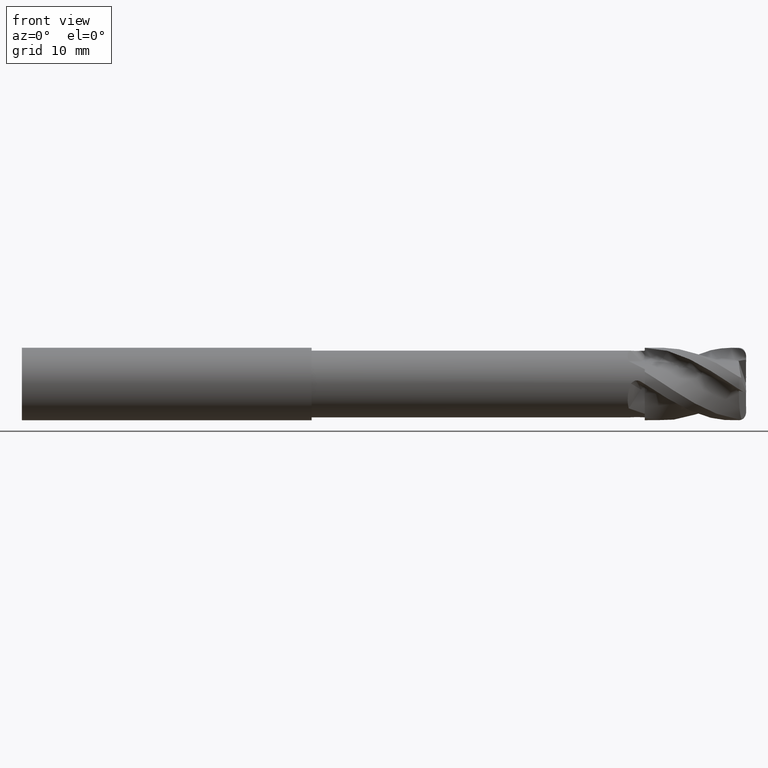
[diagram: clean part render]
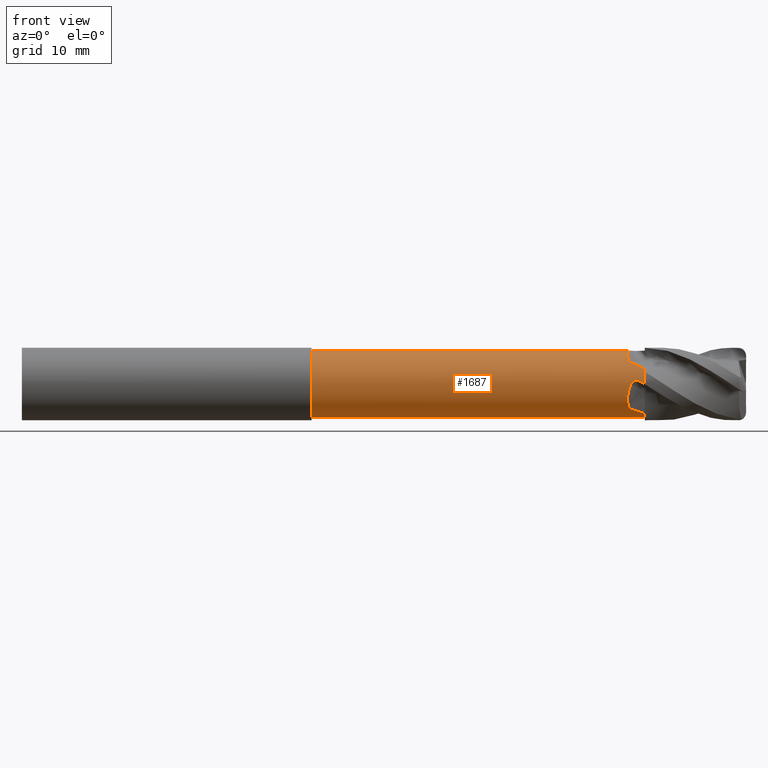
[diagram: same view with one face highlighted and labeled with its STEP entity id]
A machine part, front view. The second image highlights one B-rep face of the part: STEP entity #1687.
In plain terms, the highlighted cylindrical surface (edge-blend (fillet) strip) has radius 4.6 mm, axis along (-1, -0, -0).
Its self-contained STEP definition (entity closure, byte-faithful):
#1 = EDGE_CURVE ( 'NONE', #1727, #1728, #140, .T. ) ;
#13 = EDGE_CURVE ( 'NONE', #1726, #1744, #111, .T. ) ;
#19 = EDGE_CURVE ( 'NONE', #1731, #1730, #106, .T. ) ;
#27 = EDGE_CURVE ( 'NONE', #1727, #1747, #450, .T. ) ;
#67 = EDGE_CURVE ( 'NONE', #1744, #1745, #425, .T. ) ;
#73 = EDGE_CURVE ( 'NONE', #1745, #1722, #408, .T. ) ;
#103 = EDGE_CURVE ( 'NONE', #1730, #1726, #731, .T. ) ;
#106 = B_SPLINE_CURVE_WITH_KNOTS ( 'NONE', 3,
 ( #1820, #2491, #2672, #2574, #2546, #2705, #2706 ),
 .UNSPECIFIED., .F., .F.,
 ( 4, 3, 4 ),
 ( 0.0000000000000000000, 0.0003069862404775633500, 0.0006140714344147620800 ),
 .UNSPECIFIED. ) ;
#111 = B_SPLINE_CURVE_WITH_KNOTS ( 'NONE', 3,
 ( #2676, #1828, #1822, #1824 ),
 .UNSPECIFIED., .F., .F.,
 ( 4, 4 ),
 ( 0.0000000000000000000, 6.838080185869621500E-005 ),
 .UNSPECIFIED. ) ;
#125 = EDGE_CURVE ( 'NONE', #1747, #1740, #727, .T. ) ;
#140 = B_SPLINE_CURVE_WITH_KNOTS ( 'NONE', 3,
 ( #1742, #2650, #2655, #2653, #2658, #2657, #2660 ),
 .UNSPECIFIED., .F., .F.,
 ( 4, 3, 4 ),
 ( 0.0000000000000000000, 0.0003069862404776255300, 0.0006140714344148917500 ),
 .UNSPECIFIED. ) ;
#145 = AXIS2_PLACEMENT_3D ( 'NONE', #4761, #4754, #4766 ) ;
#148 = AXIS2_PLACEMENT_3D ( 'NONE', #2920, #2873, #2871 ) ;
#168 = EDGE_CURVE ( 'NONE', #1731, #1729, #4811, .T. ) ;
#186 = EDGE_CURVE ( 'NONE', #1736, #1732, #2708, .T. ) ;
#190 = AXIS2_PLACEMENT_3D ( 'NONE', #1174, #1173, #1172 ) ;
#204 = EDGE_CURVE ( 'NONE', #1753, #1740, #2718, .T. ) ;
#206 = AXIS2_PLACEMENT_3D ( 'NONE', #1883, #1913, #1911 ) ;
#224 = EDGE_CURVE ( 'NONE', #1728, #1736, #2731, .T. ) ;
#276 = CARTESIAN_POINT ( 'NONE',  ( 44.07893505724294400, 9.016631842204136900E-013, 4.600000000000015600 ) ) ;
#294 = CARTESIAN_POINT ( 'NONE',  ( 43.95419935290313200, -0.2955900278572648500, 4.600000000000072500 ) ) ;
#296 = CARTESIAN_POINT ( 'NONE',  ( 43.85817310060237200, -0.5967088308552106500, 4.571732275602527400 ) ) ;
#297 = CARTESIAN_POINT ( 'NONE',  ( 43.75213022278601500, -1.054337306683800000, 4.480242426575428800 ) ) ;
#298 = CARTESIAN_POINT ( 'NONE',  ( 43.72312372491381200, -1.208682668761086800, 4.441173662984714300 ) ) ;
#299 = CARTESIAN_POINT ( 'NONE',  ( 43.67869275047195300, -1.510404310162502200, 4.347828897092780300 ) ) ;
#301 = CARTESIAN_POINT ( 'NONE',  ( 43.66298549693981800, -1.658717742134005600, 4.293453385617111100 ) ) ;
#302 = CARTESIAN_POINT ( 'NONE',  ( 43.63353993338933600, -2.095796726736601100, 4.107064909439383600 ) ) ;
#303 = CARTESIAN_POINT ( 'NONE',  ( 43.63787710533019700, -2.379860355642487300, 3.949243524223658300 ) ) ;
#305 = CARTESIAN_POINT ( 'NONE',  ( 43.68644192710299000, -2.898537879205585800, 3.585908237642405200 ) ) ;
#306 = CARTESIAN_POINT ( 'NONE',  ( 43.73004574127910600, -3.136093808607402600, 3.380021263543008000 ) ) ;
#307 = CARTESIAN_POINT ( 'NONE',  ( 43.78568294005627600, -3.359977695790956600, 3.149999999999951500 ) ) ;
#349 = CARTESIAN_POINT ( 'NONE',  ( 43.78568294005627600, -3.149999999999940000, -3.359977695790965900 ) ) ;
#350 = CARTESIAN_POINT ( 'NONE',  ( 43.72895469692024800, -3.384153176011021300, -3.132211171381885400 ) ) ;
#351 = CARTESIAN_POINT ( 'NONE',  ( 43.68486841192310500, -3.593307055375468000, -2.890005949104669900 ) ) ;
#352 = CARTESIAN_POINT ( 'NONE',  ( 43.63687158576347300, -3.961377257550784800, -2.360398314571275200 ) ) ;
#353 = CARTESIAN_POINT ( 'NONE',  ( 43.63365829765663100, -4.120377571512436900, -2.070352182996622500 ) ) ;
#354 = CARTESIAN_POINT ( 'NONE',  ( 43.68323659156426000, -4.360791999144690400, -1.472869865255140400 ) ) ;
#355 = CARTESIAN_POINT ( 'NONE',  ( 43.87391116522581300, -4.578800391629767000, -0.5423860922521219800 ) ) ;
#356 = CARTESIAN_POINT ( 'NONE',  ( 43.73086922116351600, -4.452988221274950800, -1.164795433098706300 ) ) ;
#357 = CARTESIAN_POINT ( 'NONE',  ( 43.76174014983607200, -4.491069679502148300, -1.007567396614694300 ) ) ;
#359 = CARTESIAN_POINT ( 'NONE',  ( 43.97502998458069400, -4.603711048002462100, -0.2364424908305896600 ) ) ;
#366 = CARTESIAN_POINT ( 'NONE',  ( 44.10627371195472100, -4.599559900650954000, 0.06362955542768243500 ) ) ;
#375 = CARTESIAN_POINT ( 'NONE',  ( 43.66623769917768500, -4.306705324596857000, -1.624271104358688800 ) ) ;
#408 = CIRCLE ( 'NONE', #145, 4.600000000000013000 ) ;
#424 = VECTOR ( 'NONE', #4720, 1000.000000000000000 ) ;
#425 = LINE ( 'NONE', #4714, #424 ) ;
#450 = CIRCLE ( 'NONE', #206, 4.600000000000018300 ) ;
#727 = B_SPLINE_CURVE_WITH_KNOTS ( 'NONE', 3,
 ( #3028, #3020, #3019, #3018 ),
 .UNSPECIFIED., .F., .F.,
 ( 4, 4 ),
 ( 0.0000000000000000000, 0.002579758341866398600 ),
 .UNSPECIFIED. ) ;
#731 = B_SPLINE_CURVE_WITH_KNOTS ( 'NONE', 3,
 ( #3039, #3012, #2991, #3051, #3014, #3015, #3033, #3042, #3041, #3032 ),
 .UNSPECIFIED., .F., .F.,
 ( 4, 2, 2, 2, 4 ),
 ( 0.0000000000000000000, 0.0003904199212847112600, 0.0007808398425694225100, 0.001171259763854133800, 0.001561679685138845000 ),
 .UNSPECIFIED. ) ;
#803 = EDGE_LOOP ( 'NONE', ( #5625, #5617, #5618, #5619, #5635, #5636, #5637, #5620, #5621, #5622, #5609, #5610, #5600, #5589 ) ) ;
#1172 = DIRECTION ( 'NONE',  ( 0.0000000000000000000, 0.0000000000000000000, 1.000000000000000000 ) ) ;
#1173 = DIRECTION ( 'NONE',  ( -1.000000000000000000, -0.0000000000000000000, -0.0000000000000000000 ) ) ;
#1174 = CARTESIAN_POINT ( 'NONE',  ( -39.76065438357068200, 0.0000000000000000000, 0.0000000000000000000 ) ) ;
#1687 = ADVANCED_FACE ( 'NONE', ( #2790 ), #2828, .T. ) ;
#1722 = VERTEX_POINT ( 'NONE', #5164 ) ;
#1726 = VERTEX_POINT ( 'NONE', #5237 ) ;
#1727 = VERTEX_POINT ( 'NONE', #5238 ) ;
#1728 = VERTEX_POINT ( 'NONE', #5239 ) ;
#1729 = VERTEX_POINT ( 'NONE', #5240 ) ;
#1730 = VERTEX_POINT ( 'NONE', #5241 ) ;
#1731 = VERTEX_POINT ( 'NONE', #5242 ) ;
#1732 = VERTEX_POINT ( 'NONE', #5243 ) ;
#1736 = VERTEX_POINT ( 'NONE', #5247 ) ;
#1740 = VERTEX_POINT ( 'NONE', #5251 ) ;
#1742 = CARTESIAN_POINT ( 'NONE',  ( 46.00000000000002800, -4.603806250000014100, -4.676041058834078400E-014 ) ) ;
#1744 = VERTEX_POINT ( 'NONE', #5253 ) ;
#1745 = VERTEX_POINT ( 'NONE', #4883 ) ;
#1747 = VERTEX_POINT ( 'NONE', #5255 ) ;
#1753 = VERTEX_POINT ( 'NONE', #5261 ) ;
#1820 = CARTESIAN_POINT ( 'NONE',  ( 46.00000000000002800, 3.071796905985891100E-014, -4.603806250000012300 ) ) ;
#1819 = CARTESIAN_POINT ( 'NONE',  ( 45.47496809532886200, -4.588978823489457100, 0.3182347522906425800 ) ) ;
#1822 = CARTESIAN_POINT ( 'NONE',  ( 44.08789765494422100, -0.02123894291805464300, -4.600000000000008500 ) ) ;
#1824 = CARTESIAN_POINT ( 'NONE',  ( 44.07893505724294400, -9.008364800638935000E-013, -4.600000000000017400 ) ) ;
#1825 = CARTESIAN_POINT ( 'NONE',  ( 45.36208974345387200, -4.584241403570437100, 0.3865488491322854300 ) ) ;
#1828 = CARTESIAN_POINT ( 'NONE',  ( 44.09700990263597500, -0.04244903675422961200, -4.599852908463883100 ) ) ;
#1827 = CARTESIAN_POINT ( 'NONE',  ( 45.24179263251831200, -4.579391793827790400, 0.4360046734374108400 ) ) ;
#1829 = CARTESIAN_POINT ( 'NONE',  ( 44.98602054695378900, -4.573211066602183900, 0.4966586523396911400 ) ) ;
#1831 = CARTESIAN_POINT ( 'NONE',  ( 44.85523423182749500, -4.572048517663413100, 0.5065647287861608800 ) ) ;
#1833 = CARTESIAN_POINT ( 'NONE',  ( 44.59525196074254400, -4.575326415361315600, 0.4760500658705912300 ) ) ;
#1834 = CARTESIAN_POINT ( 'NONE',  ( 44.46577530485289000, -4.580064301766896100, 0.4339461765837049300 ) ) ;
#1836 = CARTESIAN_POINT ( 'NONE',  ( 44.24726286046345100, -4.591501150517749400, 0.2888173770487132400 ) ) ;
#1837 = CARTESIAN_POINT ( 'NONE',  ( 44.15954311615705300, -4.597875028281163300, 0.1854231360638921600 ) ) ;
#1839 = CARTESIAN_POINT ( 'NONE',  ( 44.10627371195472100, -4.599559900650954000, 0.06362955542768243500 ) ) ;
#1883 = CARTESIAN_POINT ( 'NONE',  ( 46.00000000000000000, 0.0000000000000000000, 0.0000000000000000000 ) ) ;
#1911 = DIRECTION ( 'NONE',  ( 0.0000000000000000000, 0.0000000000000000000, 1.000000000000000000 ) ) ;
#1913 = DIRECTION ( 'NONE',  ( -1.000000000000000000, -0.0000000000000000000, -0.0000000000000000000 ) ) ;
#2491 = CARTESIAN_POINT ( 'NONE',  ( 45.91249813699651800, -0.05305276993577612300, -4.600000000000035200 ) ) ;
#2546 = CARTESIAN_POINT ( 'NONE',  ( 45.65000113758224400, -0.2122332164550807500, -4.595408140834669200 ) ) ;
#2574 = CARTESIAN_POINT ( 'NONE',  ( 45.73751687418249600, -0.1591715181152138200, -4.597245308640932400 ) ) ;
#2650 = CARTESIAN_POINT ( 'NONE',  ( 45.91249813699649700, -4.600000000000104400, 0.05305276993571764200 ) ) ;
#2653 = CARTESIAN_POINT ( 'NONE',  ( 45.73751687418246100, -4.597245308640930600, 0.1591715181152048000 ) ) ;
#2655 = CARTESIAN_POINT ( 'NONE',  ( 45.82500441381377200, -4.599081884524349700, 0.1061269158899167000 ) ) ;
#2657 = CARTESIAN_POINT ( 'NONE',  ( 45.56248452080900100, -4.592651830724720200, 0.2652695990481003200 ) ) ;
#2658 = CARTESIAN_POINT ( 'NONE',  ( 45.65000113758219400, -4.595408140834667400, 0.2122332164550826400 ) ) ;
#2660 = CARTESIAN_POINT ( 'NONE',  ( 45.47496809532886200, -4.588978823489457100, 0.3182347522906425800 ) ) ;
#2672 = CARTESIAN_POINT ( 'NONE',  ( 45.82500441381378700, -0.1061269158899357500, -4.599081884524351500 ) ) ;
#2676 = CARTESIAN_POINT ( 'NONE',  ( 44.10627371195472100, -0.06362955542771243900, -4.599559900650954900 ) ) ;
#2705 = CARTESIAN_POINT ( 'NONE',  ( 45.56248452080907200, -0.2652695990480707900, -4.592651830724690000 ) ) ;
#2706 = CARTESIAN_POINT ( 'NONE',  ( 45.47496809532895400, -0.3182347522906102700, -4.588978823489458000 ) ) ;
#2708 = B_SPLINE_CURVE_WITH_KNOTS ( 'NONE', 3,
 ( #366, #359, #355, #357, #356, #354, #375, #353, #352, #351, #350, #349 ),
 .UNSPECIFIED., .F., .F.,
 ( 4, 2, 2, 2, 2, 4 ),
 ( 0.0000000000000000000, 0.0009687754797152428500, 0.001453163219572862400, 0.001937550959430482200, 0.002906326439145720500, 0.003875101918860959300 ),
 .UNSPECIFIED. ) ;
#2718 = B_SPLINE_CURVE_WITH_KNOTS ( 'NONE', 3,
 ( #276, #294, #296, #297, #298, #299, #301, #302, #303, #305, #306, #307 ),
 .UNSPECIFIED., .F., .F.,
 ( 4, 2, 2, 2, 2, 4 ),
 ( 6.838080185869568700E-005, 0.001020061081109255700, 0.001495901220734537900, 0.001971741360359820500, 0.002923421639610384000, 0.003875101918860948400 ),
 .UNSPECIFIED. ) ;
#2731 = B_SPLINE_CURVE_WITH_KNOTS ( 'NONE', 3,
 ( #1819, #1825, #1827, #1829, #1831, #1833, #1834, #1836, #1837, #1839 ),
 .UNSPECIFIED., .F., .F.,
 ( 4, 2, 2, 2, 4 ),
 ( 0.0000000000000000000, 0.0003904199212846476700, 0.0007808398425692951200, 0.001171259763853942800, 0.001561679685138590200 ),
 .UNSPECIFIED. ) ;
#2775 = VECTOR ( 'NONE', #5383, 1000.000000000000000 ) ;
#2780 = LINE ( 'NONE', #5382, #2775 ) ;
#2790 = FACE_OUTER_BOUND ( 'NONE', #803, .T. ) ;
#2828 = CYLINDRICAL_SURFACE ( 'NONE', #190, 4.600000000000015600 ) ;
#2871 = DIRECTION ( 'NONE',  ( 0.0000000000000000000, 0.0000000000000000000, 1.000000000000000000 ) ) ;
#2873 = DIRECTION ( 'NONE',  ( -1.000000000000000000, -0.0000000000000000000, -0.0000000000000000000 ) ) ;
#2920 = CARTESIAN_POINT ( 'NONE',  ( 46.00000000000000000, 0.0000000000000000000, 0.0000000000000000000 ) ) ;
#2991 = CARTESIAN_POINT ( 'NONE',  ( 45.24179263251835400, -0.4360046734374000100, -4.579391793827792200 ) ) ;
#3012 = CARTESIAN_POINT ( 'NONE',  ( 45.36208974345394300, -0.3865488491322629000, -4.584241403570438000 ) ) ;
#3014 = CARTESIAN_POINT ( 'NONE',  ( 44.85523423182750900, -0.5065647287862157200, -4.572048517663408700 ) ) ;
#3015 = CARTESIAN_POINT ( 'NONE',  ( 44.59525196074250900, -0.4760500658707231800, -4.575326415361304900 ) ) ;
#3018 = CARTESIAN_POINT ( 'NONE',  ( 43.78568294005627600, -3.359977695790956600, 3.149999999999951500 ) ) ;
#3019 = CARTESIAN_POINT ( 'NONE',  ( 44.53502912971742900, -3.650546472060925300, 2.832539423016042800 ) ) ;
#3020 = CARTESIAN_POINT ( 'NONE',  ( 45.26246651607478100, -3.914400639360508200, 2.457064298590751200 ) ) ;
#3028 = CARTESIAN_POINT ( 'NONE',  ( 45.99999999999998600, -4.114268091360783000, 2.057376502347268800 ) ) ;
#3032 = CARTESIAN_POINT ( 'NONE',  ( 44.10627371195472100, -0.06362955542771243900, -4.599559900650954900 ) ) ;
#3033 = CARTESIAN_POINT ( 'NONE',  ( 44.46577530485281200, -0.4339461765838668100, -4.580064301766881800 ) ) ;
#3039 = CARTESIAN_POINT ( 'NONE',  ( 45.47496809532895400, -0.3182347522906102700, -4.588978823489458000 ) ) ;
#3041 = CARTESIAN_POINT ( 'NONE',  ( 44.15954311615686100, -0.1854231360640581400, -4.597875028281154500 ) ) ;
#3042 = CARTESIAN_POINT ( 'NONE',  ( 44.24726286046329400, -0.2888173770488909900, -4.591501150517737900 ) ) ;
#3051 = CARTESIAN_POINT ( 'NONE',  ( 44.98602054695377500, -0.4966586523397157300, -4.573211066602182100 ) ) ;
#4714 = CARTESIAN_POINT ( 'NONE',  ( -39.76065438357068200, 5.633375276077843800E-016, -4.600000000000015600 ) ) ;
#4720 = DIRECTION ( 'NONE',  ( -1.000000000000000000, -0.0000000000000000000, -0.0000000000000000000 ) ) ;
#4754 = DIRECTION ( 'NONE',  ( -1.000000000000000000, -0.0000000000000000000, -0.0000000000000000000 ) ) ;
#4761 = CARTESIAN_POINT ( 'NONE',  ( 0.0000000000000000000, 0.0000000000000000000, 0.0000000000000000000 ) ) ;
#4766 = DIRECTION ( 'NONE',  ( 0.0000000000000000000, 0.0000000000000000000, 1.000000000000000000 ) ) ;
#4811 = CIRCLE ( 'NONE', #148, 4.600000000000018300 ) ;
#4883 = CARTESIAN_POINT ( 'NONE',  ( 0.0000000000000000000, 5.633375276077842800E-016, -4.600000000000013000 ) ) ;
#5164 = CARTESIAN_POINT ( 'NONE',  ( 0.0000000000000000000, 0.0000000000000000000, 4.600000000000013000 ) ) ;
#5237 = CARTESIAN_POINT ( 'NONE',  ( 44.10627371195472100, -0.06362955542771243900, -4.599559900650954900 ) ) ;
#5238 = CARTESIAN_POINT ( 'NONE',  ( 46.00000000000002800, -4.603806250000014100, -4.676041058834078400E-014 ) ) ;
#5239 = CARTESIAN_POINT ( 'NONE',  ( 45.47496809532886200, -4.588978823489457100, 0.3182347522906425800 ) ) ;
#5240 = CARTESIAN_POINT ( 'NONE',  ( 45.99999999999998600, -2.057376502468786200, -4.114268091300012000 ) ) ;
#5241 = CARTESIAN_POINT ( 'NONE',  ( 45.47496809532895400, -0.3182347522906102700, -4.588978823489458000 ) ) ;
#5242 = CARTESIAN_POINT ( 'NONE',  ( 46.00000000000002800, 3.071796905985891100E-014, -4.603806250000012300 ) ) ;
#5243 = CARTESIAN_POINT ( 'NONE',  ( 43.78568294005627600, -3.149999999999940000, -3.359977695790965900 ) ) ;
#5247 = CARTESIAN_POINT ( 'NONE',  ( 44.10627371195472100, -4.599559900650954000, 0.06362955542768243500 ) ) ;
#5251 = CARTESIAN_POINT ( 'NONE',  ( 43.78568294005627600, -3.359977695790956600, 3.149999999999951500 ) ) ;
#5253 = CARTESIAN_POINT ( 'NONE',  ( 44.07893505724294400, -9.008364800638935000E-013, -4.600000000000017400 ) ) ;
#5255 = CARTESIAN_POINT ( 'NONE',  ( 45.99999999999998600, -4.114268091360783000, 2.057376502347268800 ) ) ;
#5261 = CARTESIAN_POINT ( 'NONE',  ( 44.07893505724294400, 9.016631842204136900E-013, 4.600000000000015600 ) ) ;
#5382 = CARTESIAN_POINT ( 'NONE',  ( -39.76065438357068200, 0.0000000000000000000, 4.600000000000015600 ) ) ;
#5383 = DIRECTION ( 'NONE',  ( -1.000000000000000000, -0.0000000000000000000, -0.0000000000000000000 ) ) ;
#5428 = CARTESIAN_POINT ( 'NONE',  ( 45.99999999999998600, -2.057376502468786200, -4.114268091300012000 ) ) ;
#5439 = CARTESIAN_POINT ( 'NONE',  ( 45.26246651612931500, -2.457064298746590900, -3.914400639267819200 ) ) ;
#5440 = CARTESIAN_POINT ( 'NONE',  ( 44.53502912978166300, -2.832539423129153200, -3.650546471954638300 ) ) ;
#5441 = CARTESIAN_POINT ( 'NONE',  ( 43.78568294005627600, -3.149999999999940000, -3.359977695790965900 ) ) ;
#5545 = B_SPLINE_CURVE_WITH_KNOTS ( 'NONE', 3,
 ( #5428, #5439, #5440, #5441 ),
 .UNSPECIFIED., .F., .F.,
 ( 4, 4 ),
 ( 0.0000000000000000000, 0.002579758341796959800 ),
 .UNSPECIFIED. ) ;
#5589 = ORIENTED_EDGE ( 'NONE', *, *, #73, .F. ) ;
#5600 = ORIENTED_EDGE ( 'NONE', *, *, #5683, .T. ) ;
#5609 = ORIENTED_EDGE ( 'NONE', *, *, #125, .T. ) ;
#5610 = ORIENTED_EDGE ( 'NONE', *, *, #204, .F. ) ;
#5617 = ORIENTED_EDGE ( 'NONE', *, *, #13, .F. ) ;
#5618 = ORIENTED_EDGE ( 'NONE', *, *, #103, .F. ) ;
#5619 = ORIENTED_EDGE ( 'NONE', *, *, #19, .F. ) ;
#5620 = ORIENTED_EDGE ( 'NONE', *, *, #224, .F. ) ;
#5621 = ORIENTED_EDGE ( 'NONE', *, *, #1, .F. ) ;
#5622 = ORIENTED_EDGE ( 'NONE', *, *, #27, .T. ) ;
#5625 = ORIENTED_EDGE ( 'NONE', *, *, #67, .F. ) ;
#5635 = ORIENTED_EDGE ( 'NONE', *, *, #168, .T. ) ;
#5636 = ORIENTED_EDGE ( 'NONE', *, *, #5692, .T. ) ;
#5637 = ORIENTED_EDGE ( 'NONE', *, *, #186, .F. ) ;
#5683 = EDGE_CURVE ( 'NONE', #1753, #1722, #2780, .T. ) ;
#5692 = EDGE_CURVE ( 'NONE', #1729, #1732, #5545, .T. ) ;